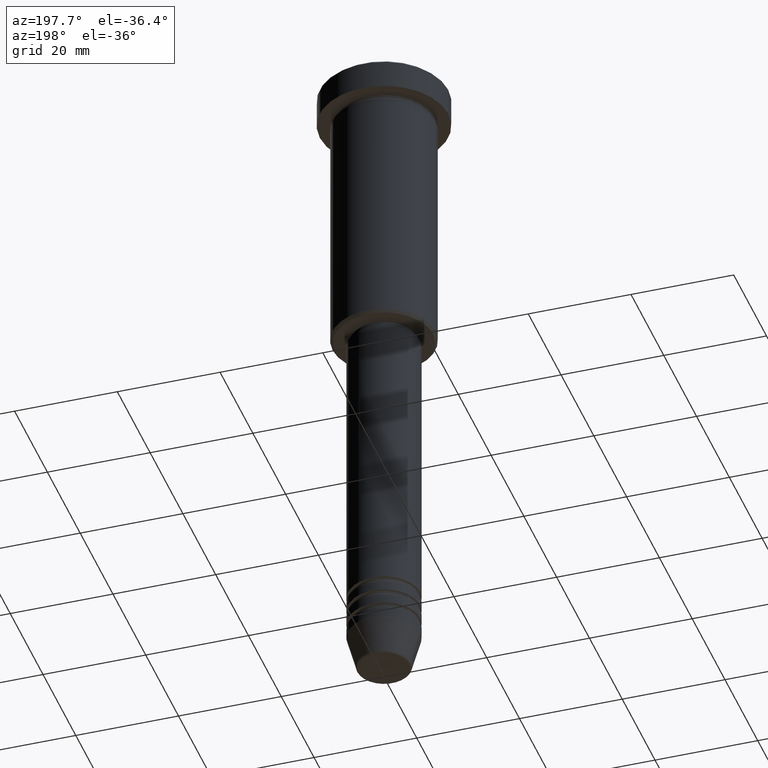
[diagram: clean part render]
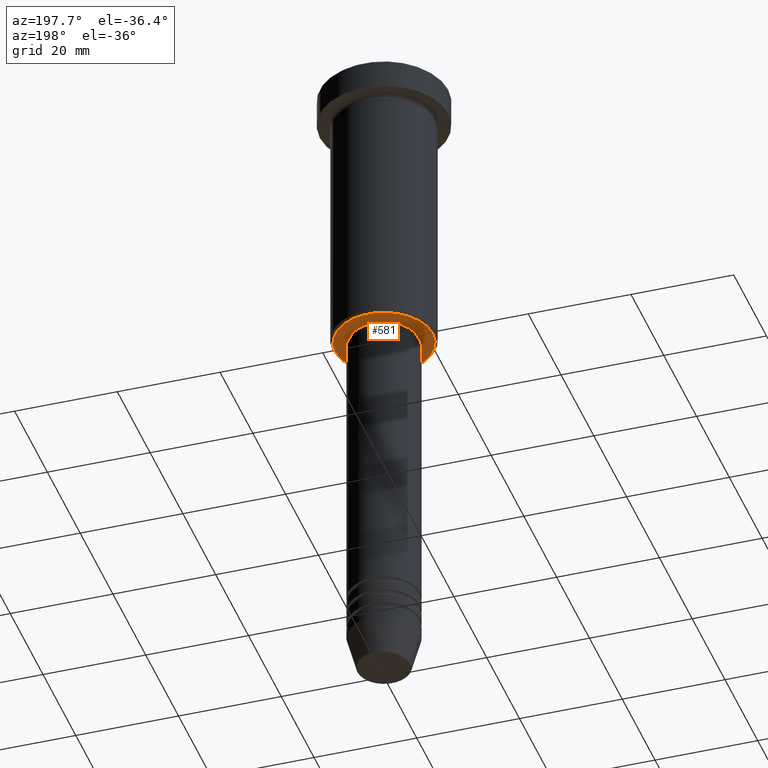
[diagram: same view with one face highlighted and labeled with its STEP entity id]
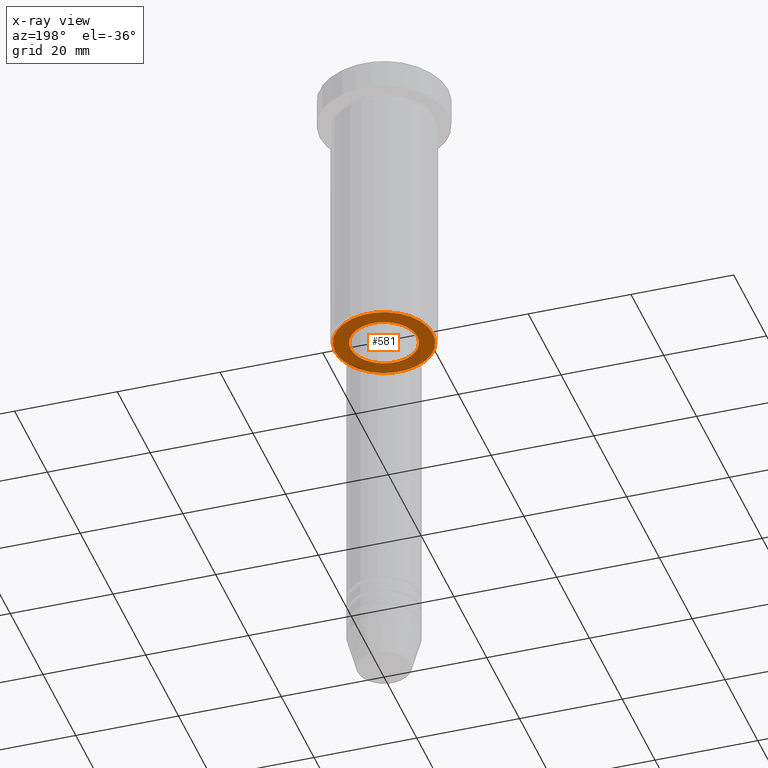
[diagram: x-ray of the same camera — body ghosted, the highlighted face saturated]
A machine part, auxiliary view. The second image highlights one B-rep face of the part: STEP entity #581.
The next image is the same camera in x-ray: the body ghosted, the highlighted face saturated — about 20% of this face is hidden behind the body in this view.
In plain terms, the highlighted planar face has unit normal (0, 0, -1).
Its self-contained STEP definition (entity closure, byte-faithful):
#6 = CARTESIAN_POINT ( 'NONE',  ( 0.000000000000000000, 0.000000000000000000, -55.99999999999999289 ) ) ;
#69 = DIRECTION ( 'NONE',  ( 0.000000000000000000, 0.000000000000000000, -1.000000000000000000 ) ) ;
#77 = DIRECTION ( 'NONE',  ( -1.000000000000000000, 0.000000000000000000, 0.000000000000000000 ) ) ;
#125 = AXIS2_PLACEMENT_3D ( 'NONE', #952, #512, #1141 ) ;
#138 = ORIENTED_EDGE ( 'NONE', *, *, #208, .T. ) ;
#181 = DIRECTION ( 'NONE',  ( -0.000000000000000000, -0.000000000000000000, 1.000000000000000000 ) ) ;
#208 = EDGE_CURVE ( 'NONE', #218, #316, #752, .T. ) ;
#216 = EDGE_LOOP ( 'NONE', ( #668, #270 ) ) ;
#218 = VERTEX_POINT ( 'NONE', #738 ) ;
#235 = CIRCLE ( 'NONE', #873, 9.499999999999994671 ) ;
#244 = FACE_BOUND ( 'NONE', #216, .T. ) ;
#253 = CARTESIAN_POINT ( 'NONE',  ( 6.500000000000000000, 0.000000000000000000, -55.99999999999999289 ) ) ;
#270 = ORIENTED_EDGE ( 'NONE', *, *, #800, .T. ) ;
#316 = VERTEX_POINT ( 'NONE', #756 ) ;
#320 = CARTESIAN_POINT ( 'NONE',  ( -6.500000000000000000, 7.960204194457795477E-16, -55.99999999999999289 ) ) ;
#395 = AXIS2_PLACEMENT_3D ( 'NONE', #821, #1101, #1089 ) ;
#402 = VERTEX_POINT ( 'NONE', #320 ) ;
#509 = CIRCLE ( 'NONE', #765, 6.500000000000000000 ) ;
#512 = DIRECTION ( 'NONE',  ( -0.000000000000000000, -0.000000000000000000, 1.000000000000000000 ) ) ;
#523 = CARTESIAN_POINT ( 'NONE',  ( 0.000000000000000000, 10.00000000000000000, -55.99999999999999289 ) ) ;
#544 = EDGE_CURVE ( 'NONE', #316, #218, #235, .T. ) ;
#547 = EDGE_CURVE ( 'NONE', #1115, #402, #509, .T. ) ;
#581 = ADVANCED_FACE ( 'NONE', ( #1065, #244 ), #980, .T. ) ;
#621 = DIRECTION ( 'NONE',  ( 0.000000000000000000, 0.000000000000000000, -1.000000000000000000 ) ) ;
#628 = DIRECTION ( 'NONE',  ( -1.000000000000000000, 0.000000000000000000, -0.000000000000000000 ) ) ;
#668 = ORIENTED_EDGE ( 'NONE', *, *, #547, .T. ) ;
#700 = CIRCLE ( 'NONE', #125, 6.500000000000000000 ) ;
#722 = ORIENTED_EDGE ( 'NONE', *, *, #544, .T. ) ;
#738 = CARTESIAN_POINT ( 'NONE',  ( 9.499999999999994671, 0.000000000000000000, -55.99999999999999289 ) ) ;
#752 = CIRCLE ( 'NONE', #395, 9.499999999999994671 ) ;
#756 = CARTESIAN_POINT ( 'NONE',  ( -9.499999999999994671, 1.194030629168669075E-15, -55.99999999999999289 ) ) ;
#765 = AXIS2_PLACEMENT_3D ( 'NONE', #6, #181, #812 ) ;
#800 = EDGE_CURVE ( 'NONE', #402, #1115, #700, .T. ) ;
#805 = CARTESIAN_POINT ( 'NONE',  ( 0.000000000000000000, 0.000000000000000000, -55.99999999999999289 ) ) ;
#812 = DIRECTION ( 'NONE',  ( 1.000000000000000000, 0.000000000000000000, 0.000000000000000000 ) ) ;
#821 = CARTESIAN_POINT ( 'NONE',  ( 0.000000000000000000, 0.000000000000000000, -55.99999999999999289 ) ) ;
#873 = AXIS2_PLACEMENT_3D ( 'NONE', #805, #69, #77 ) ;
#914 = AXIS2_PLACEMENT_3D ( 'NONE', #523, #621, #628 ) ;
#952 = CARTESIAN_POINT ( 'NONE',  ( 0.000000000000000000, 0.000000000000000000, -55.99999999999999289 ) ) ;
#980 = PLANE ( 'NONE',  #914 ) ;
#1045 = EDGE_LOOP ( 'NONE', ( #138, #722 ) ) ;
#1065 = FACE_OUTER_BOUND ( 'NONE', #1045, .T. ) ;
#1089 = DIRECTION ( 'NONE',  ( -1.000000000000000000, 0.000000000000000000, 0.000000000000000000 ) ) ;
#1101 = DIRECTION ( 'NONE',  ( 0.000000000000000000, 0.000000000000000000, -1.000000000000000000 ) ) ;
#1115 = VERTEX_POINT ( 'NONE', #253 ) ;
#1141 = DIRECTION ( 'NONE',  ( 1.000000000000000000, 0.000000000000000000, 0.000000000000000000 ) ) ;